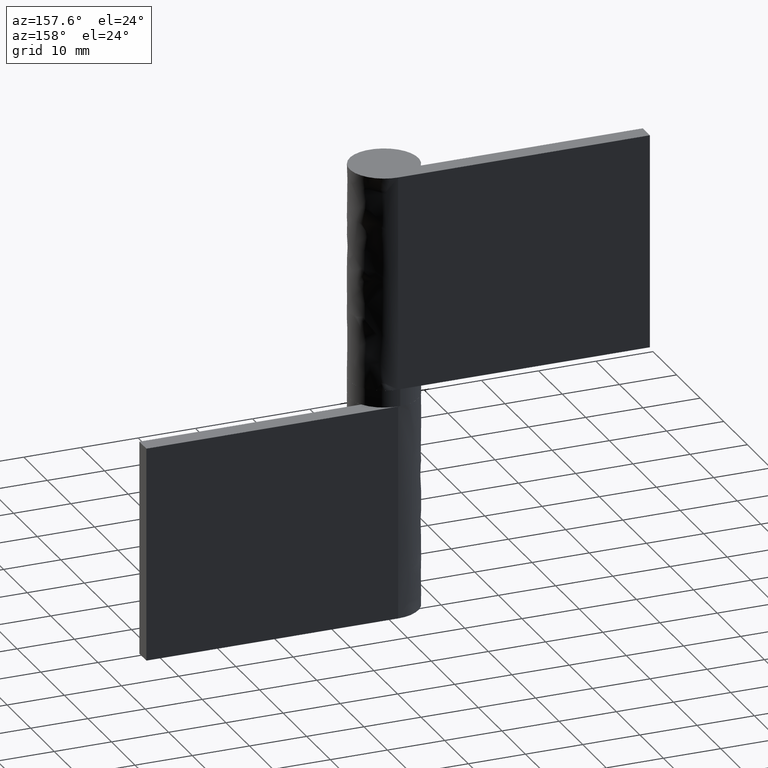
[diagram: clean part render]
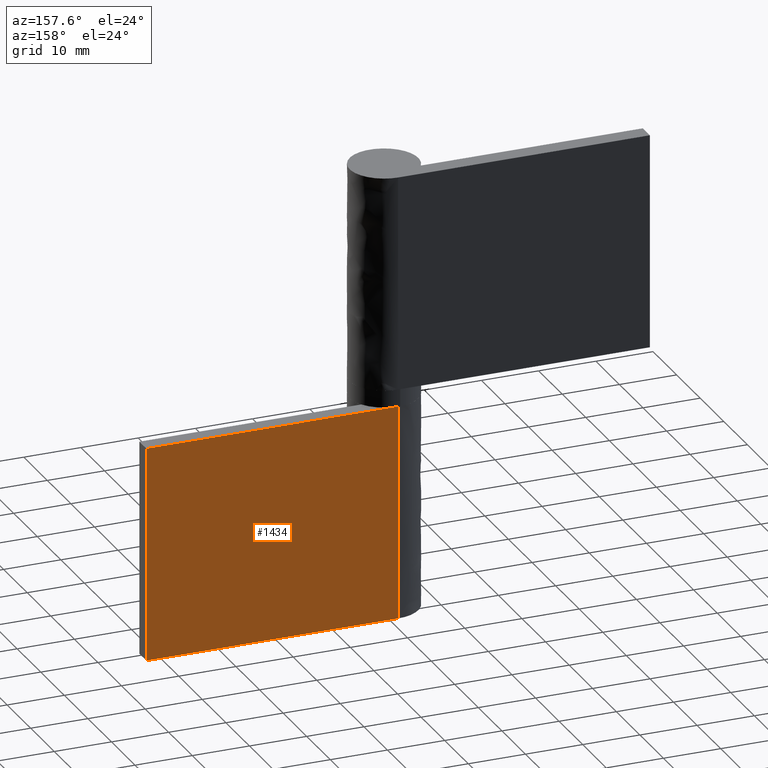
[diagram: same view with one face highlighted and labeled with its STEP entity id]
A machine part, auxiliary view. The second image highlights one B-rep face of the part: STEP entity #1434.
In plain terms, the highlighted face is a freeform B-spline surface patch.
Its self-contained STEP definition (entity closure, byte-faithful):
#1228=CARTESIAN_POINT('',(-0.000007999999995,6.0,0.0));
#1229=VERTEX_POINT('',#1228);
#1249=CARTESIAN_POINT('',(43.999984999999803,6.0,0.0));
#1250=VERTEX_POINT('',#1249);
#1251=CARTESIAN_POINT('',(-0.000007999999995,6.0,0.0));
#1252=CARTESIAN_POINT('',(43.999984999999803,6.0,0.0));
#1253=QUASI_UNIFORM_CURVE('',1,(#1251,#1252),.UNSPECIFIED.,.F.,.U.);
#1254=EDGE_CURVE('',#1229,#1250,#1253,.T.);
#1269=CARTESIAN_POINT('',(-0.000007999999995,6.0,37.500000000000000));
#1270=VERTEX_POINT('',#1269);
#1271=CARTESIAN_POINT('',(43.999984999999803,6.0,37.500000000000000));
#1272=VERTEX_POINT('',#1271);
#1273=CARTESIAN_POINT('',(-0.000007999999995,6.0,37.500000000000000));
#1274=CARTESIAN_POINT('',(43.999984999999803,6.0,37.500000000000000));
#1275=QUASI_UNIFORM_CURVE('',1,(#1273,#1274),.UNSPECIFIED.,.F.,.U.);
#1276=EDGE_CURVE('',#1270,#1272,#1275,.T.);
#1377=CARTESIAN_POINT('',(-0.000007999999995,6.0,37.500000000000000));
#1378=CARTESIAN_POINT('',(-0.000007999999995,6.0,0.0));
#1379=QUASI_UNIFORM_CURVE('',1,(#1377,#1378),.UNSPECIFIED.,.F.,.U.);
#1380=EDGE_CURVE('',#1270,#1229,#1379,.T.);
#1413=CARTESIAN_POINT('',(43.999984999999803,6.0,37.500000000000000));
#1414=CARTESIAN_POINT('',(43.999984999999803,6.0,0.0));
#1415=QUASI_UNIFORM_CURVE('',1,(#1413,#1414),.UNSPECIFIED.,.F.,.U.);
#1416=EDGE_CURVE('',#1272,#1250,#1415,.T.);
#1423=CARTESIAN_POINT('',(-2.197807565069458,6.0,-1.873124927317721));
#1424=CARTESIAN_POINT('',(-2.197807565069458,6.0,39.373125933146113));
#1425=CARTESIAN_POINT('',(46.197785745241042,6.0,-1.873124927317721));
#1426=CARTESIAN_POINT('',(46.197785745241042,6.0,39.373125933146113));
#1427=B_SPLINE_SURFACE_WITH_KNOTS('',1,1,((#1423,#1425),(#1424,#1426)),.UNSPECIFIED.,.F.,.F.,.U.,(2,2),(2,2),(0.0,41.246250860463817),(0.0,48.395593310310502),.UNSPECIFIED.);
#1428=ORIENTED_EDGE('',*,*,#1254,.F.);
#1429=ORIENTED_EDGE('',*,*,#1380,.F.);
#1430=ORIENTED_EDGE('',*,*,#1276,.T.);
#1431=ORIENTED_EDGE('',*,*,#1416,.T.);
#1432=EDGE_LOOP('',(#1428,#1429,#1430,#1431));
#1433=FACE_OUTER_BOUND('',#1432,.T.);
#1434=ADVANCED_FACE('',(#1433),#1427,.T.);